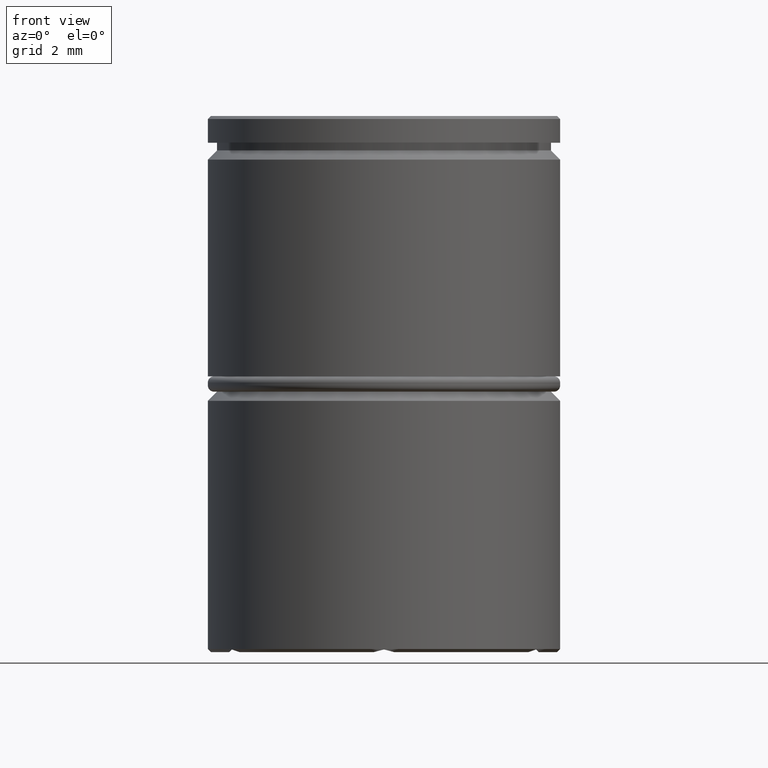
[diagram: clean part render]
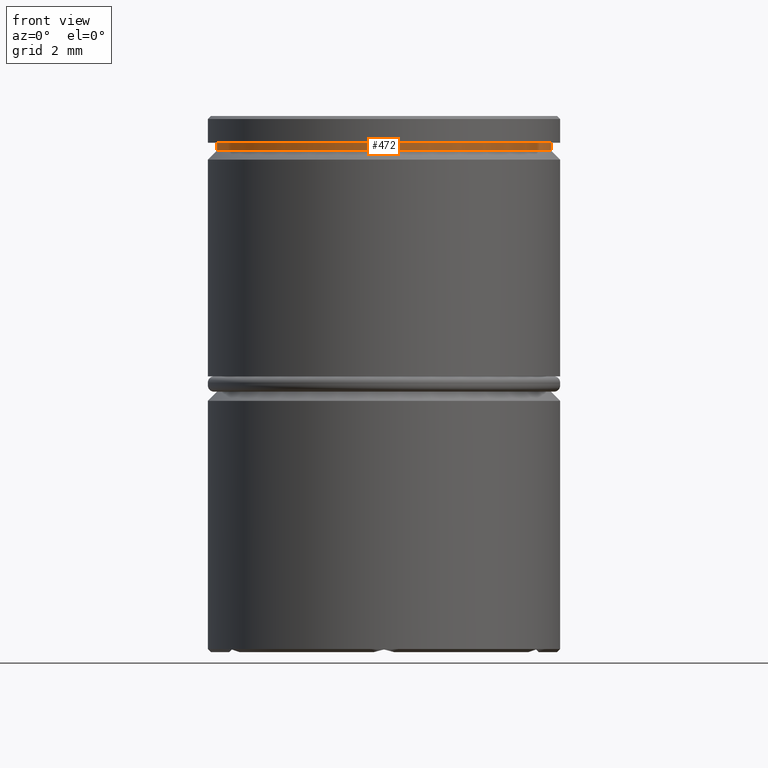
[diagram: same view with one face highlighted and labeled with its STEP entity id]
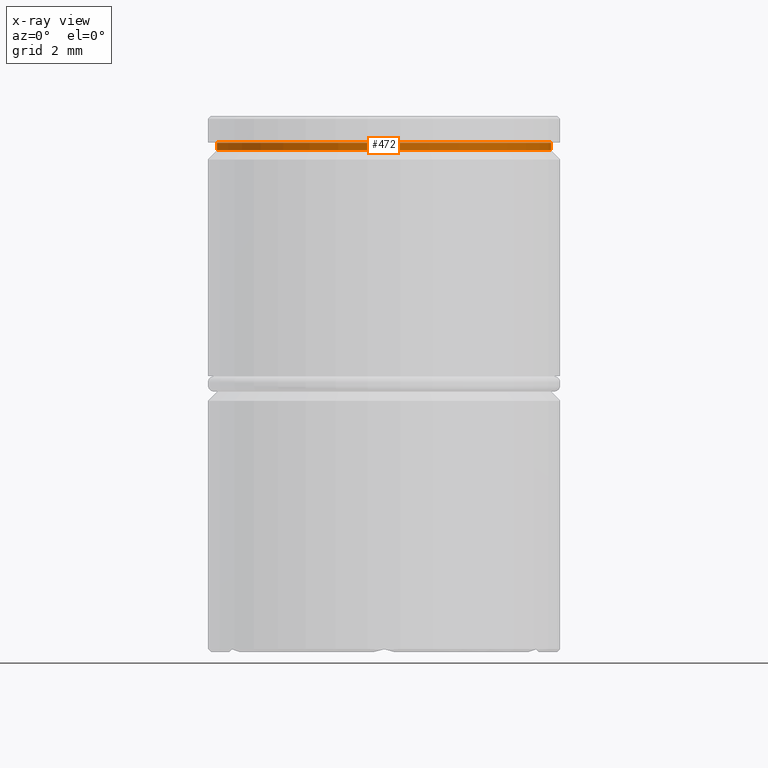
[diagram: x-ray of the same camera — body ghosted, the highlighted face saturated]
A machine part, front view. The second image highlights one B-rep face of the part: STEP entity #472.
The next image is the same camera in x-ray: the body ghosted, the highlighted face saturated — about 0% of this face is hidden behind the body in this view.
In plain terms, the highlighted cylindrical surface (partial cylindrical patch) has radius 5.45 mm, axis along (-0, -0, 1).
Its self-contained STEP definition (entity closure, byte-faithful):
#23 = CARTESIAN_POINT ( 'NONE',  ( 5.450000000000000178, 0.000000000000000000, -1.125000000000000222 ) ) ;
#45 = VECTOR ( 'NONE', #81, 1000.000000000000000 ) ;
#52 = EDGE_CURVE ( 'NONE', #1023, #764, #828, .T. ) ;
#81 = DIRECTION ( 'NONE',  ( -0.000000000000000000, -0.000000000000000000, 1.000000000000000000 ) ) ;
#96 = CARTESIAN_POINT ( 'NONE',  ( 0.000000000000000000, 0.000000000000000000, -1.125000000000000222 ) ) ;
#117 = EDGE_CURVE ( 'NONE', #886, #512, #1208, .T. ) ;
#154 = DIRECTION ( 'NONE',  ( -0.000000000000000000, -0.000000000000000000, 1.000000000000000000 ) ) ;
#170 = CARTESIAN_POINT ( 'NONE',  ( -5.450000000000000178, 6.674325055353075238E-16, 0.000000000000000000 ) ) ;
#172 = AXIS2_PLACEMENT_3D ( 'NONE', #187, #1159, #425 ) ;
#187 = CARTESIAN_POINT ( 'NONE',  ( 0.000000000000000000, 0.000000000000000000, -0.8749999999999998890 ) ) ;
#188 = ORIENTED_EDGE ( 'NONE', *, *, #1306, .T. ) ;
#221 = AXIS2_PLACEMENT_3D ( 'NONE', #810, #1139, #692 ) ;
#241 = ORIENTED_EDGE ( 'NONE', *, *, #52, .T. ) ;
#333 = FACE_OUTER_BOUND ( 'NONE', #1325, .T. ) ;
#425 = DIRECTION ( 'NONE',  ( 1.000000000000000000, 0.000000000000000000, 0.000000000000000000 ) ) ;
#472 = ADVANCED_FACE ( 'NONE', ( #333 ), #797, .T. ) ;
#490 = LINE ( 'NONE', #917, #1036 ) ;
#499 = CARTESIAN_POINT ( 'NONE',  ( -5.450000000000000178, 6.674325055353075238E-16, -0.8749999999999998890 ) ) ;
#512 = VERTEX_POINT ( 'NONE', #800 ) ;
#571 = LINE ( 'NONE', #170, #45 ) ;
#692 = DIRECTION ( 'NONE',  ( 1.000000000000000000, 0.000000000000000000, 0.000000000000000000 ) ) ;
#727 = DIRECTION ( 'NONE',  ( 1.000000000000000000, 0.000000000000000000, 0.000000000000000000 ) ) ;
#764 = VERTEX_POINT ( 'NONE', #23 ) ;
#776 = EDGE_CURVE ( 'NONE', #1023, #886, #571, .T. ) ;
#797 = CYLINDRICAL_SURFACE ( 'NONE', #221, 5.450000000000000178 ) ;
#800 = CARTESIAN_POINT ( 'NONE',  ( 5.450000000000000178, 0.000000000000000000, -0.8749999999999998890 ) ) ;
#810 = CARTESIAN_POINT ( 'NONE',  ( 0.000000000000000000, 0.000000000000000000, 0.000000000000000000 ) ) ;
#828 = CIRCLE ( 'NONE', #941, 5.450000000000000178 ) ;
#886 = VERTEX_POINT ( 'NONE', #499 ) ;
#917 = CARTESIAN_POINT ( 'NONE',  ( 5.450000000000000178, 0.000000000000000000, 0.000000000000000000 ) ) ;
#941 = AXIS2_PLACEMENT_3D ( 'NONE', #96, #1279, #727 ) ;
#958 = CARTESIAN_POINT ( 'NONE',  ( -5.450000000000000178, 6.674325055353075238E-16, -1.125000000000000222 ) ) ;
#1023 = VERTEX_POINT ( 'NONE', #958 ) ;
#1036 = VECTOR ( 'NONE', #154, 1000.000000000000000 ) ;
#1072 = ORIENTED_EDGE ( 'NONE', *, *, #117, .F. ) ;
#1139 = DIRECTION ( 'NONE',  ( -0.000000000000000000, -0.000000000000000000, 1.000000000000000000 ) ) ;
#1159 = DIRECTION ( 'NONE',  ( -0.000000000000000000, -0.000000000000000000, 1.000000000000000000 ) ) ;
#1208 = CIRCLE ( 'NONE', #172, 5.450000000000000178 ) ;
#1279 = DIRECTION ( 'NONE',  ( -0.000000000000000000, -0.000000000000000000, 1.000000000000000000 ) ) ;
#1306 = EDGE_CURVE ( 'NONE', #764, #512, #490, .T. ) ;
#1325 = EDGE_LOOP ( 'NONE', ( #1343, #241, #188, #1072 ) ) ;
#1343 = ORIENTED_EDGE ( 'NONE', *, *, #776, .F. ) ;